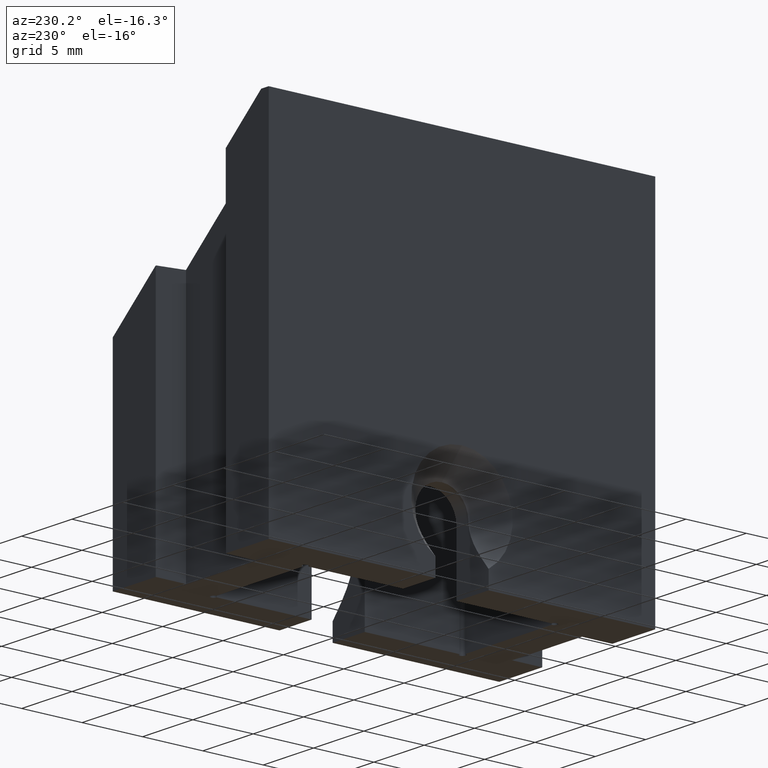
[diagram: clean part render]
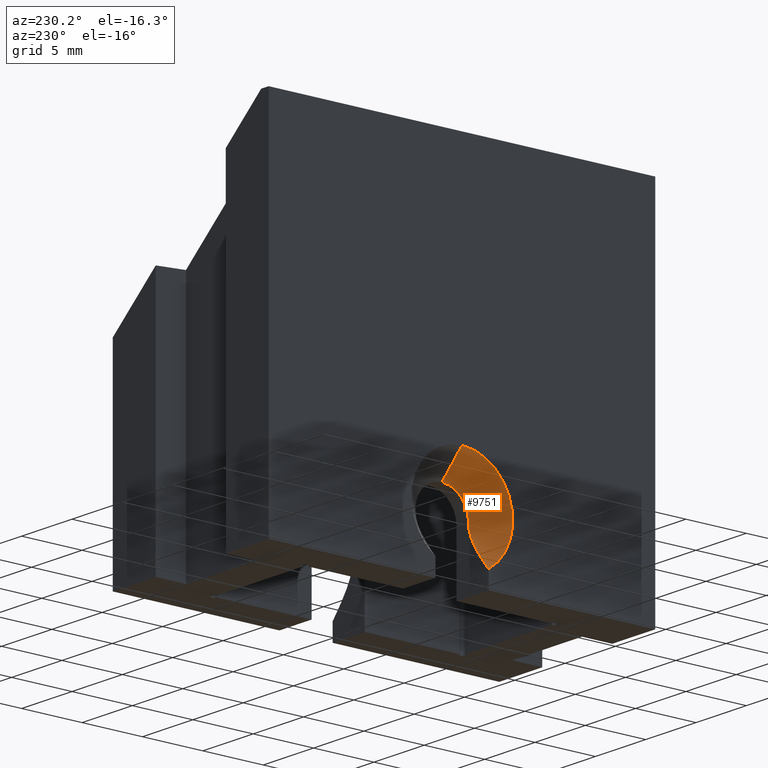
[diagram: same view with one face highlighted and labeled with its STEP entity id]
A machine part, auxiliary view. The second image highlights one B-rep face of the part: STEP entity #9751.
In plain terms, the highlighted conical surface has half-angle 45 deg.
Its self-contained STEP definition (entity closure, byte-faithful):
#98 = DIRECTION ( 'NONE',  ( -1.000000000000000000, 0.000000000000000000, 0.000000000000000000 ) ) ;
#175 = EDGE_CURVE ( 'NONE', #2449, #11673, #7821, .T. ) ;
#411 = ORIENTED_EDGE ( 'NONE', *, *, #175, .F. ) ;
#829 = CARTESIAN_POINT ( 'NONE',  ( -5.907063001687698822, -2.200000000000000178, -10.85824346781600624 ) ) ;
#1116 = CARTESIAN_POINT ( 'NONE',  ( -7.301954824841295100, -2.200000000000000178, -13.04404780166125732 ) ) ;
#1561 = VERTEX_POINT ( 'NONE', #3522 ) ;
#1820 = AXIS2_PLACEMENT_3D ( 'NONE', #10838, #11723, #7732 ) ;
#1839 = CARTESIAN_POINT ( 'NONE',  ( -5.750000000000004441, -2.200000000000000622, -10.17447666026262176 ) ) ;
#1866 = EDGE_CURVE ( 'NONE', #1561, #2449, #3356, .T. ) ;
#2190 = CARTESIAN_POINT ( 'NONE',  ( -5.750000000000005329, 0.000000000000000000, -7.800000000000001599 ) ) ;
#2237 = CONICAL_SURFACE ( 'NONE', #8857, 2.200000000000000622, 0.7853981633974501664 ) ;
#2449 = VERTEX_POINT ( 'NONE', #2190 ) ;
#2527 = EDGE_CURVE ( 'NONE', #12999, #1561, #12678, .T. ) ;
#3356 = CIRCLE ( 'NONE', #9773, 2.200000000000000622 ) ;
#3421 = CARTESIAN_POINT ( 'NONE',  ( -5.750000000000005329, 0.000000000000000000, -7.800000000000001599 ) ) ;
#3522 = CARTESIAN_POINT ( 'NONE',  ( -5.750000000000005329, -2.200000000000000178, -10.00000000000000178 ) ) ;
#3529 = CARTESIAN_POINT ( 'NONE',  ( -7.750000000000000000, -2.200000000000000178, -13.57770876399966831 ) ) ;
#3748 = CARTESIAN_POINT ( 'NONE',  ( -7.750000000000000000, 0.000000000000000000, -5.799999999999999822 ) ) ;
#3762 = CARTESIAN_POINT ( 'NONE',  ( -5.771499848068251559, -2.200000000000000622, -10.35070099242206254 ) ) ;
#3840 = DIRECTION ( 'NONE',  ( -1.000000000000000000, 0.000000000000000000, 0.000000000000000000 ) ) ;
#3986 = DIRECTION ( 'NONE',  ( 0.000000000000000000, 0.000000000000000000, -1.000000000000000000 ) ) ;
#4041 = EDGE_LOOP ( 'NONE', ( #411, #9399, #6508, #8459 ) ) ;
#4748 = CARTESIAN_POINT ( 'NONE',  ( -6.664674798397744127, -2.199999999999999734, -12.21564561969988283 ) ) ;
#6508 = ORIENTED_EDGE ( 'NONE', *, *, #2527, .F. ) ;
#6551 = VECTOR ( 'NONE', #10452, 1000.000000000000000 ) ;
#6571 = CARTESIAN_POINT ( 'NONE',  ( -7.750000000000000000, -2.200000000000000178, -13.57770876399966831 ) ) ;
#7460 = CARTESIAN_POINT ( 'NONE',  ( -7.524119801093320348, -2.200000000000000622, -13.31253993724825513 ) ) ;
#7625 = FACE_OUTER_BOUND ( 'NONE', #4041, .T. ) ;
#7732 = DIRECTION ( 'NONE',  ( 0.000000000000000000, 0.000000000000000000, -1.000000000000000000 ) ) ;
#7774 = CARTESIAN_POINT ( 'NONE',  ( -5.850878133858335772, -2.200000000000000178, -10.69424044680936170 ) ) ;
#7821 = LINE ( 'NONE', #3421, #6551 ) ;
#7949 = CARTESIAN_POINT ( 'NONE',  ( -6.281746870756432344, -2.199999999999999734, -11.63411363687131583 ) ) ;
#7977 = DIRECTION ( 'NONE',  ( 0.000000000000000000, 0.000000000000000000, 1.000000000000000000 ) ) ;
#8193 = CIRCLE ( 'NONE', #1820, 4.200000000000001954 ) ;
#8459 = ORIENTED_EDGE ( 'NONE', *, *, #11217, .F. ) ;
#8857 = AXIS2_PLACEMENT_3D ( 'NONE', #12989, #3840, #7977 ) ;
#9399 = ORIENTED_EDGE ( 'NONE', *, *, #1866, .F. ) ;
#9751 = ADVANCED_FACE ( 'NONE', ( #7625 ), #2237, .F. ) ;
#9773 = AXIS2_PLACEMENT_3D ( 'NONE', #12144, #98, #3986 ) ;
#9796 = CARTESIAN_POINT ( 'NONE',  ( -6.107299071504511012, -2.199999999999999734, -11.33533589991925083 ) ) ;
#10452 = DIRECTION ( 'NONE',  ( -0.7071067811865462405, 0.000000000000000000, 0.7071067811865489050 ) ) ;
#10838 = CARTESIAN_POINT ( 'NONE',  ( -7.750000000000000000, 0.000000000000000000, -10.00000000000000178 ) ) ;
#11217 = EDGE_CURVE ( 'NONE', #11673, #12999, #8193, .T. ) ;
#11673 = VERTEX_POINT ( 'NONE', #3748 ) ;
#11723 = DIRECTION ( 'NONE',  ( 1.000000000000000000, 0.000000000000000000, 0.000000000000000000 ) ) ;
#11807 = CARTESIAN_POINT ( 'NONE',  ( -6.872674229077957442, -2.200000000000000622, -12.49584175053777280 ) ) ;
#12144 = CARTESIAN_POINT ( 'NONE',  ( -5.750000000000005329, 0.000000000000000000, -10.00000000000000178 ) ) ;
#12678 = B_SPLINE_CURVE_WITH_KNOTS ( 'NONE', 3,
 ( #3529, #7460, #1116, #11807, #4748, #7949, #9796, #829, #7774, #3762, #1839, #12777 ),
 .UNSPECIFIED., .F., .F.,
 ( 4, 2, 2, 2, 2, 4 ),
 ( 0.004482585585460133366, 0.005526994629106656877, 0.006571403672753181255, 0.007615812716399704765, 0.008138017238222964786, 0.008660221760046224806 ),
 .UNSPECIFIED. ) ;
#12777 = CARTESIAN_POINT ( 'NONE',  ( -5.750000000000005329, -2.200000000000000178, -10.00000000000000178 ) ) ;
#12989 = CARTESIAN_POINT ( 'NONE',  ( -5.750000000000005329, 0.000000000000000000, -10.00000000000000178 ) ) ;
#12999 = VERTEX_POINT ( 'NONE', #6571 ) ;